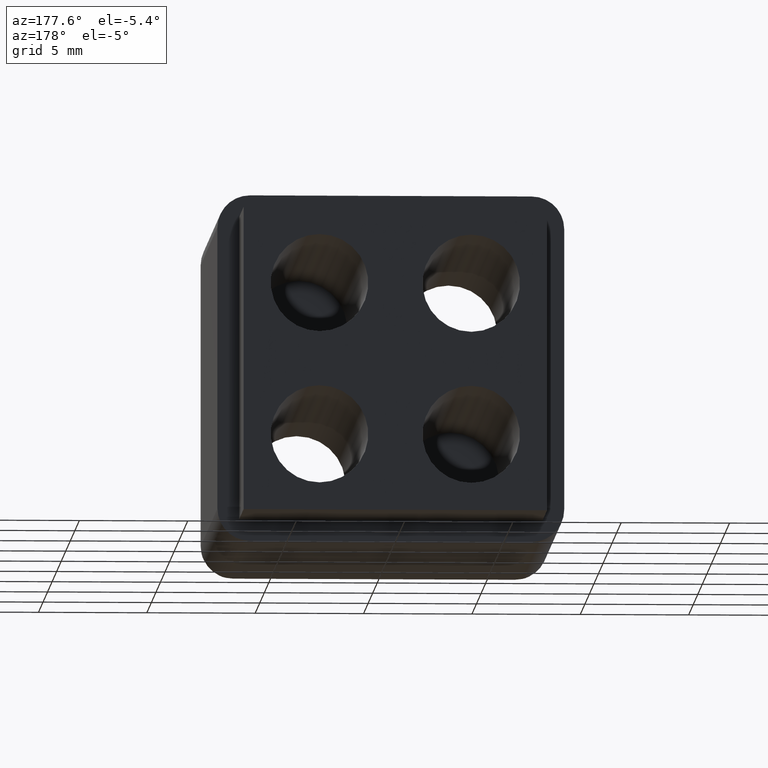
[diagram: clean part render]
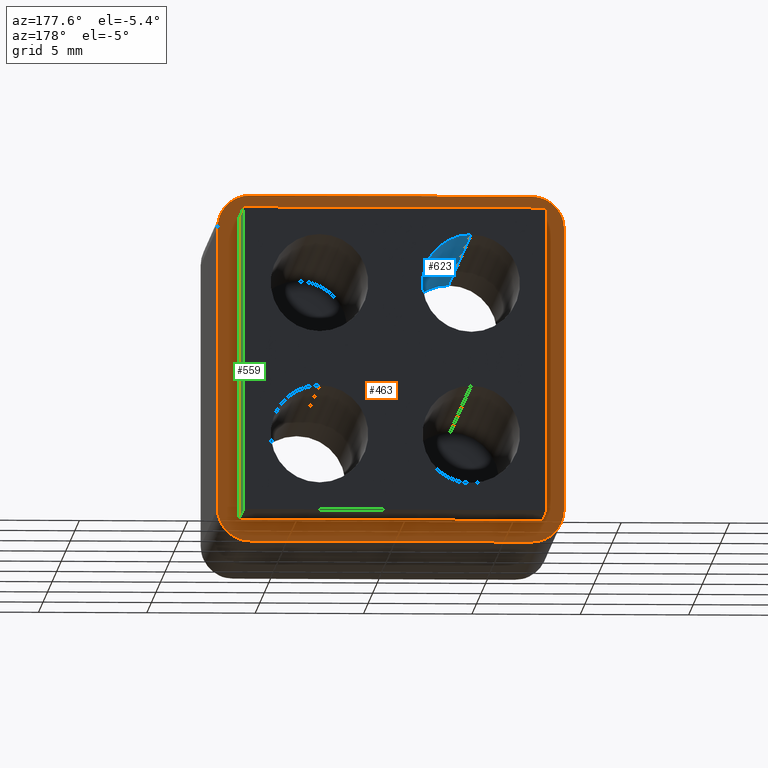
[diagram: same view with three faces highlighted in distinct colors, each labeled with its STEP entity id]
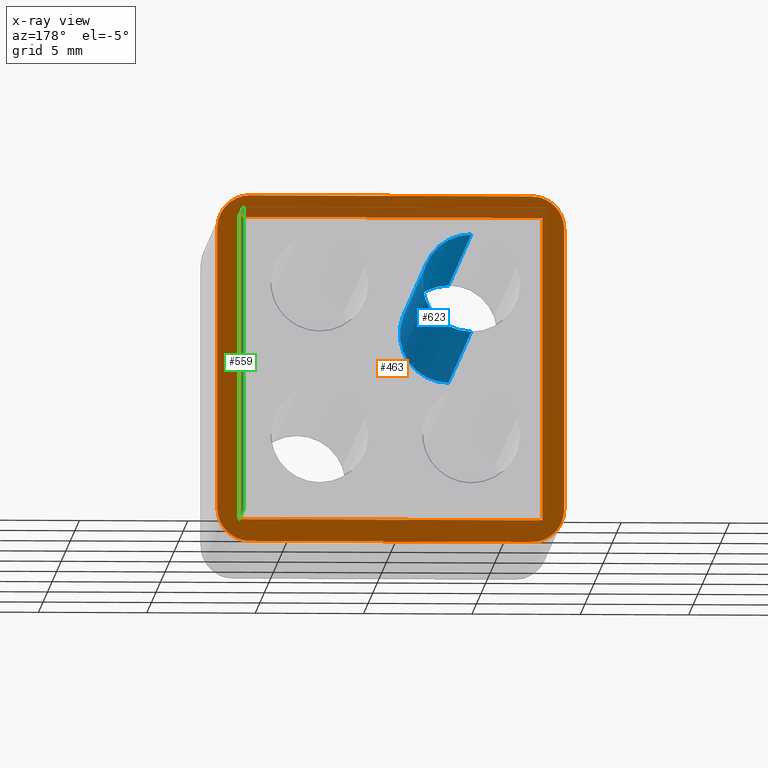
[diagram: x-ray of the same camera — body ghosted, the three highlighted faces saturated]
A machine part, auxiliary view with three faces highlighted in distinct colors.
The next image is the same camera in x-ray (body ghosted, the three faces saturated) — at least one of them is partly hidden behind the body in this view.
Their STEP definitions:

[orange] entity #463 — the highlighted planar face has unit normal (0, 1, 0).
#185=CARTESIAN_POINT('',(8.000000000000004,20.0,-6.500000000000003));
#186=VERTEX_POINT('',#185);
#193=CARTESIAN_POINT('',(8.000000000000004,20.0,6.499999999999997));
#194=VERTEX_POINT('',#193);
#195=CARTESIAN_POINT('',(8.000000000000004,20.0,6.499999999999996));
#196=DIRECTION('',(0.0,0.0,-1.0));
#197=VECTOR('',#196,13.0);
#198=LINE('',#195,#197);
#199=EDGE_CURVE('',#194,#186,#198,.T.);
#215=CARTESIAN_POINT('',(6.500000000000003,20.0,-8.000000000000004));
#216=VERTEX_POINT('',#215);
#217=CARTESIAN_POINT('',(-6.500000000000003,20.0,-8.000000000000004));
#218=VERTEX_POINT('',#217);
#219=CARTESIAN_POINT('',(6.500000000000004,20.0,-8.000000000000004));
#220=DIRECTION('',(-1.0,0.0,0.0));
#221=VECTOR('',#220,13.000000000000009);
#222=LINE('',#219,#221);
#223=EDGE_CURVE('',#216,#218,#222,.T.);
#255=CARTESIAN_POINT('',(-8.0,20.0,-6.500000000000003));
#256=VERTEX_POINT('',#255);
#257=CARTESIAN_POINT('',(-7.999999999999997,20.0,6.499999999999997));
#258=VERTEX_POINT('',#257);
#259=CARTESIAN_POINT('',(-8.0,20.0,-6.500000000000003));
#260=DIRECTION('',(0.0,0.0,1.0));
#261=VECTOR('',#260,13.0);
#262=LINE('',#259,#261);
#263=EDGE_CURVE('',#256,#258,#262,.T.);
#295=CARTESIAN_POINT('',(-6.499999999999997,20.0,7.999999999999997));
#296=VERTEX_POINT('',#295);
#297=CARTESIAN_POINT('',(6.500000000000004,20.0,7.999999999999997));
#298=VERTEX_POINT('',#297);
#299=CARTESIAN_POINT('',(-6.499999999999997,20.0,7.999999999999997));
#300=DIRECTION('',(1.0,0.0,0.0));
#301=VECTOR('',#300,13.000000000000002);
#302=LINE('',#299,#301);
#303=EDGE_CURVE('',#296,#298,#302,.T.);
#390=CARTESIAN_POINT('',(-8.800000000000001,20.0,-8.800000000000004));
#391=DIRECTION('',(0.0,1.0,0.0));
#392=DIRECTION('',(0.0,0.0,1.0));
#393=AXIS2_PLACEMENT_3D('',#390,#391,#392);
#394=PLANE('',#393);
#395=ORIENTED_EDGE('',*,*,#199,.T.);
#396=CARTESIAN_POINT('',(6.500000000000003,20.0,-6.500000000000003));
#397=DIRECTION('',(0.0,1.0,0.0));
#398=DIRECTION('',(0.0,0.0,1.0));
#399=AXIS2_PLACEMENT_3D('',#396,#397,#398);
#400=CIRCLE('',#399,1.500000000000000);
#401=EDGE_CURVE('',#186,#216,#400,.T.);
#402=ORIENTED_EDGE('',*,*,#401,.T.);
#403=ORIENTED_EDGE('',*,*,#223,.T.);
#404=CARTESIAN_POINT('',(-6.500000000000003,20.0,-6.500000000000003));
#405=DIRECTION('',(0.0,1.0,0.0));
#406=DIRECTION('',(0.0,0.0,1.0));
#407=AXIS2_PLACEMENT_3D('',#404,#405,#406);
#408=CIRCLE('',#407,1.500000000000000);
#409=EDGE_CURVE('',#218,#256,#408,.T.);
#410=ORIENTED_EDGE('',*,*,#409,.T.);
#411=ORIENTED_EDGE('',*,*,#263,.T.);
#412=CARTESIAN_POINT('',(-6.499999999999997,20.0,6.499999999999997));
#413=DIRECTION('',(0.0,1.0,0.0));
#414=DIRECTION('',(0.0,0.0,1.0));
#415=AXIS2_PLACEMENT_3D('',#412,#413,#414);
#416=CIRCLE('',#415,1.500000000000000);
#417=EDGE_CURVE('',#258,#296,#416,.T.);
#418=ORIENTED_EDGE('',*,*,#417,.T.);
#419=ORIENTED_EDGE('',*,*,#303,.T.);
#420=CARTESIAN_POINT('',(6.500000000000004,20.0,6.499999999999997));
#421=DIRECTION('',(0.0,1.0,0.0));
#422=DIRECTION('',(0.0,0.0,1.0));
#423=AXIS2_PLACEMENT_3D('',#420,#421,#422);
#424=CIRCLE('',#423,1.500000000000000);
#425=EDGE_CURVE('',#298,#194,#424,.T.);
#426=ORIENTED_EDGE('',*,*,#425,.T.);
#427=EDGE_LOOP('',(#395,#402,#403,#410,#411,#418,#419,#426));
#428=FACE_OUTER_BOUND('',#427,.T.);
#429=CARTESIAN_POINT('',(-7.0,20.0,-7.000000000000003));
#430=VERTEX_POINT('',#429);
#431=CARTESIAN_POINT('',(-6.999999999999997,20.0,6.999999999999997));
#432=VERTEX_POINT('',#431);
#433=CARTESIAN_POINT('',(-7.0,20.0,-7.000000000000003));
#434=DIRECTION('',(0.0,0.0,1.0));
#435=VECTOR('',#434,14.0);
#436=LINE('',#433,#435);
#437=EDGE_CURVE('',#430,#432,#436,.T.);
#438=ORIENTED_EDGE('',*,*,#437,.F.);
#439=CARTESIAN_POINT('',(7.000000000000003,20.0,-6.999999999999997));
#440=VERTEX_POINT('',#439);
#441=CARTESIAN_POINT('',(7.000000000000003,20.0,-7.000000000000003));
#442=DIRECTION('',(-1.0,0.0,0.0));
#443=VECTOR('',#442,14.000000000000004);
#444=LINE('',#441,#443);
#445=EDGE_CURVE('',#440,#430,#444,.T.);
#446=ORIENTED_EDGE('',*,*,#445,.F.);
#447=CARTESIAN_POINT('',(7.000000000000003,20.0,6.999999999999997));
#448=VERTEX_POINT('',#447);
#449=CARTESIAN_POINT('',(7.000000000000003,20.0,6.999999999999997));
#450=DIRECTION('',(0.0,0.0,-1.0));
#451=VECTOR('',#450,13.999999999999995);
#452=LINE('',#449,#451);
#453=EDGE_CURVE('',#448,#440,#452,.T.);
#454=ORIENTED_EDGE('',*,*,#453,.F.);
#455=CARTESIAN_POINT('',(-6.999999999999997,20.0,6.999999999999997));
#456=DIRECTION('',(1.0,0.0,0.0));
#457=VECTOR('',#456,14.0);
#458=LINE('',#455,#457);
#459=EDGE_CURVE('',#432,#448,#458,.T.);
#460=ORIENTED_EDGE('',*,*,#459,.F.);
#461=EDGE_LOOP('',(#438,#446,#454,#460));
#462=FACE_BOUND('',#461,.T.);
#463=ADVANCED_FACE('',(#428,#462),#394,.T.);

[blue] entity #623 — the highlighted cylindrical surface (partial cylindrical patch) has radius 2.25 mm, axis along (0, -1, 0).
#133=CARTESIAN_POINT('',(-3.499999999999996,25.0,5.749999999999998));
#134=VERTEX_POINT('',#133);
#135=CARTESIAN_POINT('',(-3.499999999999997,25.0,1.249999999999999));
#136=VERTEX_POINT('',#135);
#144=CARTESIAN_POINT('',(-3.499999999999996,0.0,5.749999999999998));
#145=VERTEX_POINT('',#144);
#146=CARTESIAN_POINT('',(-3.499999999999996,25.0,5.749999999999998));
#147=DIRECTION('',(0.0,-1.0,0.0));
#148=VECTOR('',#147,25.0);
#149=LINE('',#146,#148);
#150=EDGE_CURVE('',#134,#145,#149,.T.);
#152=CARTESIAN_POINT('',(-3.499999999999997,0.0,1.249999999999999));
#153=VERTEX_POINT('',#152);
#161=CARTESIAN_POINT('',(-3.499999999999997,25.0,1.249999999999999));
#162=DIRECTION('',(0.0,-1.0,0.0));
#163=VECTOR('',#162,25.0);
#164=LINE('',#161,#163);
#165=EDGE_CURVE('',#136,#153,#164,.T.);
#379=CARTESIAN_POINT('',(-3.499999999999997,0.0,3.499999999999999));
#380=DIRECTION('',(0.0,-1.0,0.0));
#381=DIRECTION('',(0.0,0.0,-1.0));
#382=AXIS2_PLACEMENT_3D('',#379,#380,#381);
#383=CIRCLE('',#382,2.250000000000000);
#384=EDGE_CURVE('',#153,#145,#383,.T.);
#591=CARTESIAN_POINT('',(-3.499999999999997,25.0,3.499999999999999));
#592=DIRECTION('',(0.0,-1.0,0.0));
#593=DIRECTION('',(0.0,0.0,-1.0));
#594=AXIS2_PLACEMENT_3D('',#591,#592,#593);
#595=CIRCLE('',#594,2.250000000000000);
#596=EDGE_CURVE('',#136,#134,#595,.T.);
#612=CARTESIAN_POINT('',(-3.499999999999997,25.000000010000001,3.499999999999999));
#613=DIRECTION('',(0.0,-1.0,0.0));
#614=DIRECTION('',(-1.0,0.0,0.0));
#615=AXIS2_PLACEMENT_3D('',#612,#613,#614);
#616=CYLINDRICAL_SURFACE('',#615,2.250000000000000);
#617=ORIENTED_EDGE('',*,*,#150,.F.);
#618=ORIENTED_EDGE('',*,*,#596,.F.);
#619=ORIENTED_EDGE('',*,*,#165,.T.);
#620=ORIENTED_EDGE('',*,*,#384,.T.);
#621=EDGE_LOOP('',(#617,#618,#619,#620));
#622=FACE_OUTER_BOUND('',#621,.T.);
#623=ADVANCED_FACE('',(#622),#616,.F.);

[green] entity #559 — the highlighted planar face has unit normal (1, 0, 0).
#439=CARTESIAN_POINT('',(7.000000000000003,20.0,-6.999999999999997));
#440=VERTEX_POINT('',#439);
#447=CARTESIAN_POINT('',(7.000000000000003,20.0,6.999999999999997));
#448=VERTEX_POINT('',#447);
#449=CARTESIAN_POINT('',(7.000000000000003,20.0,6.999999999999997));
#450=DIRECTION('',(0.0,0.0,-1.0));
#451=VECTOR('',#450,13.999999999999995);
#452=LINE('',#449,#451);
#453=EDGE_CURVE('',#448,#440,#452,.T.);
#471=CARTESIAN_POINT('',(7.000000000000003,25.0,6.999999999999997));
#472=VERTEX_POINT('',#471);
#486=CARTESIAN_POINT('',(7.000000000000003,20.0,6.999999999999997));
#487=DIRECTION('',(0.0,1.0,0.0));
#488=VECTOR('',#487,5.0);
#489=LINE('',#486,#488);
#490=EDGE_CURVE('',#448,#472,#489,.T.);
#524=CARTESIAN_POINT('',(7.000000000000003,25.0,-7.000000000000003));
#525=VERTEX_POINT('',#524);
#532=CARTESIAN_POINT('',(7.000000000000003,20.0,-7.000000000000003));
#533=DIRECTION('',(0.0,1.0,0.0));
#534=VECTOR('',#533,5.0);
#535=LINE('',#532,#534);
#536=EDGE_CURVE('',#440,#525,#535,.T.);
#543=CARTESIAN_POINT('',(7.000000000000003,19.750000000000000,7.699999999999998));
#544=DIRECTION('',(1.0,0.0,0.0));
#545=DIRECTION('',(0.0,0.0,-1.0));
#546=AXIS2_PLACEMENT_3D('',#543,#544,#545);
#547=PLANE('',#546);
#548=CARTESIAN_POINT('',(7.000000000000003,25.0,6.999999999999997));
#549=DIRECTION('',(0.0,0.0,-1.0));
#550=VECTOR('',#549,14.0);
#551=LINE('',#548,#550);
#552=EDGE_CURVE('',#472,#525,#551,.T.);
#553=ORIENTED_EDGE('',*,*,#552,.F.);
#554=ORIENTED_EDGE('',*,*,#490,.F.);
#555=ORIENTED_EDGE('',*,*,#453,.T.);
#556=ORIENTED_EDGE('',*,*,#536,.T.);
#557=EDGE_LOOP('',(#553,#554,#555,#556));
#558=FACE_OUTER_BOUND('',#557,.T.);
#559=ADVANCED_FACE('',(#558),#547,.T.);